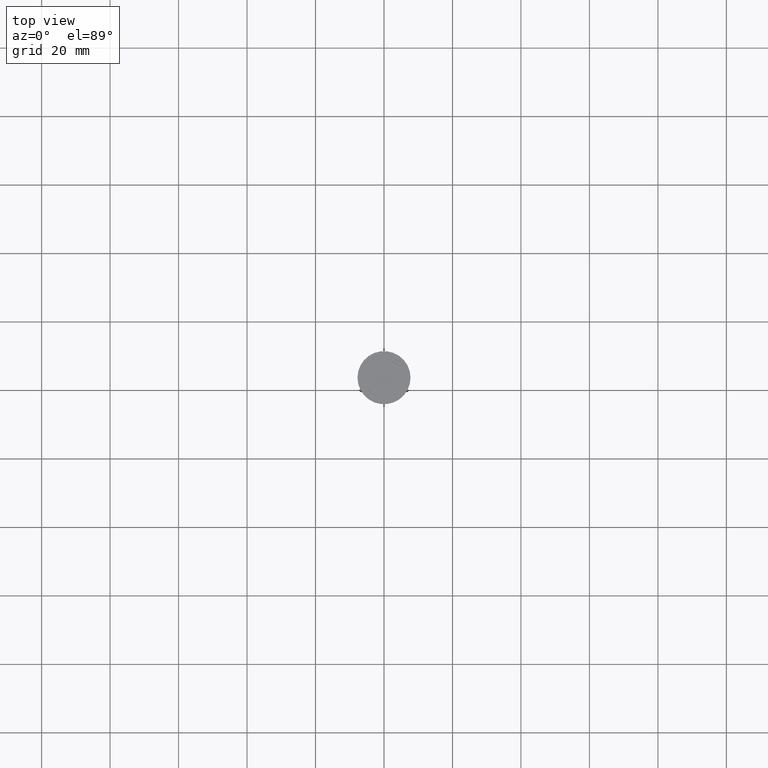
[diagram: clean part render]
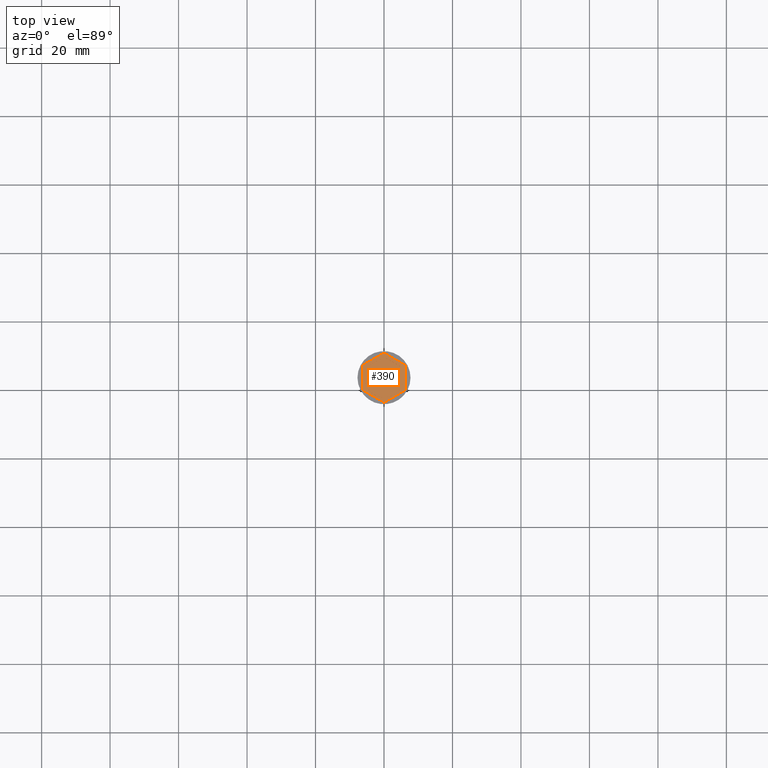
[diagram: same view with one face highlighted and labeled with its STEP entity id]
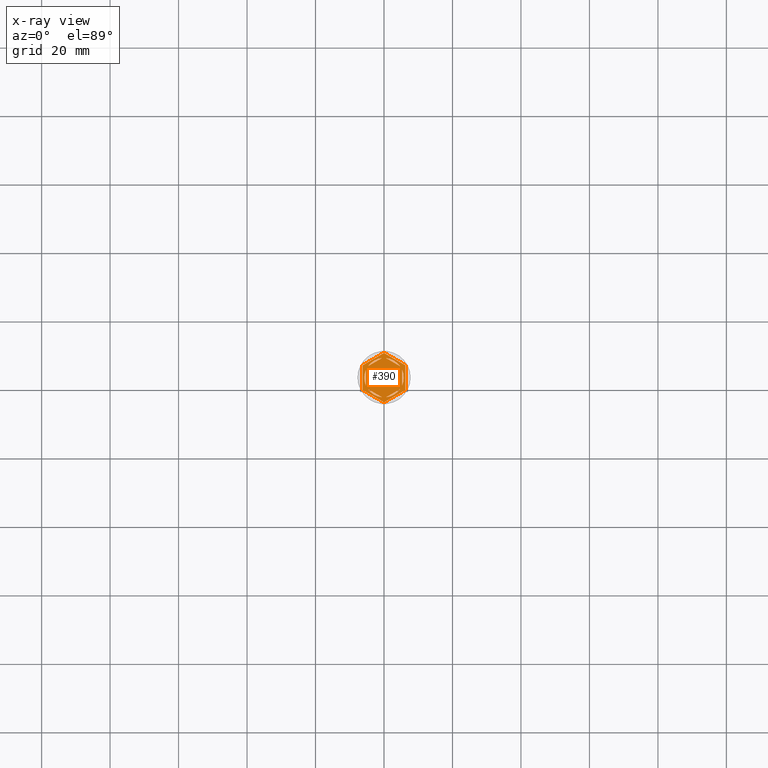
[diagram: x-ray of the same camera — body ghosted, the highlighted face saturated]
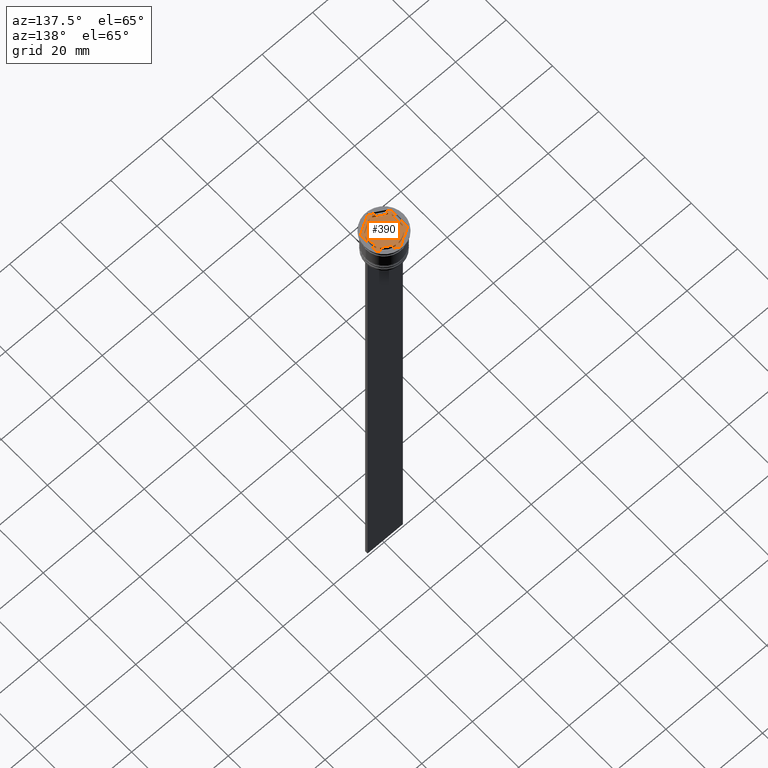
[diagram: same view with one face highlighted and labeled with its STEP entity id]
A machine part, top view. The second image highlights one B-rep face of the part: STEP entity #390.
The next image is the same camera in x-ray: the body ghosted, the highlighted face saturated — about 0% of this face is hidden behind the body in this view.
A second angle (auxiliary view) of the same face is appended — the face is thin or edge-on in the first view.
In plain terms, the highlighted planar face has unit normal (0, 0, 1).
Its self-contained STEP definition (entity closure, byte-faithful):
#1 = EDGE_CURVE ( 'NONE', #131, #1191, #1571, .T. ) ;
#15 = VERTEX_POINT ( 'NONE', #1368 ) ;
#32 = FACE_OUTER_BOUND ( 'NONE', #1095, .T. ) ;
#42 = FACE_BOUND ( 'NONE', #1668, .T. ) ;
#59 = LINE ( 'NONE', #1334, #1460 ) ;
#62 = DIRECTION ( 'NONE',  ( 0.000000000000000000, -1.000000000000000000, 0.000000000000000000 ) ) ;
#67 = DIRECTION ( 'NONE',  ( -0.8660254037844388186, 0.4999999999999997224, 0.000000000000000000 ) ) ;
#91 = CARTESIAN_POINT ( 'NONE',  ( 0.000000000000000000, 0.000000000000000000, -1.000000000000000000 ) ) ;
#94 = CARTESIAN_POINT ( 'NONE',  ( 0.000000000000000000, 7.216878364870320084, -1.000000000000000000 ) ) ;
#131 = VERTEX_POINT ( 'NONE', #1548 ) ;
#137 = EDGE_LOOP ( 'NONE', ( #1281, #879, #354 ) ) ;
#152 = DIRECTION ( 'NONE',  ( 2.403703357979454647E-16, 1.000000000000000000, 0.000000000000000000 ) ) ;
#153 = CARTESIAN_POINT ( 'NONE',  ( -1.734723475976807094E-15, -6.062177826491069510, -1.000000000000000888 ) ) ;
#201 = EDGE_LOOP ( 'NONE', ( #1879, #382 ) ) ;
#209 = VERTEX_POINT ( 'NONE', #1901 ) ;
#237 = CARTESIAN_POINT ( 'NONE',  ( 5.249999999999997335, -2.345207879911720639, -1.000000000000000888 ) ) ;
#238 = EDGE_CURVE ( 'NONE', #1006, #1802, #1163, .T. ) ;
#260 = CARTESIAN_POINT ( 'NONE',  ( -5.249999999999999112, -3.031088913245534311, -1.000000000000000888 ) ) ;
#267 = CARTESIAN_POINT ( 'NONE',  ( 0.000000000000000000, 0.000000000000000000, -1.000000000000000000 ) ) ;
#278 = DIRECTION ( 'NONE',  ( 0.8660254037844385966, -0.4999999999999998890, 0.000000000000000000 ) ) ;
#280 = VECTOR ( 'NONE', #67, 1000.000000000000000 ) ;
#293 = ORIENTED_EDGE ( 'NONE', *, *, #813, .T. ) ;
#297 = VERTEX_POINT ( 'NONE', #1419 ) ;
#299 = CARTESIAN_POINT ( 'NONE',  ( -5.249999999999999112, 3.031088913245535199, -1.000000000000000888 ) ) ;
#305 = VERTEX_POINT ( 'NONE', #1366 ) ;
#315 = CIRCLE ( 'NONE', #562, 5.750000000000000000 ) ;
#320 = EDGE_LOOP ( 'NONE', ( #1210, #1987 ) ) ;
#323 = AXIS2_PLACEMENT_3D ( 'NONE', #1432, #1236, #1207 ) ;
#331 = ORIENTED_EDGE ( 'NONE', *, *, #700, .F. ) ;
#350 = DIRECTION ( 'NONE',  ( 1.000000000000000000, 0.000000000000000000, 0.000000000000000000 ) ) ;
#354 = ORIENTED_EDGE ( 'NONE', *, *, #1492, .F. ) ;
#366 = PLANE ( 'NONE',  #1337 ) ;
#382 = ORIENTED_EDGE ( 'NONE', *, *, #1899, .F. ) ;
#390 = ADVANCED_FACE ( 'NONE', ( #1467, #538, #926, #42, #396, #1815, #32 ), #366, .T. ) ;
#393 = DIRECTION ( 'NONE',  ( 1.000000000000000000, 0.000000000000000000, 0.000000000000000000 ) ) ;
#396 = FACE_BOUND ( 'NONE', #137, .T. ) ;
#490 = EDGE_CURVE ( 'NONE', #2090, #2258, #315, .T. ) ;
#513 = CARTESIAN_POINT ( 'NONE',  ( 8.729740977282959667E-16, -7.216878364870321860, -1.000000000000000000 ) ) ;
#516 = DIRECTION ( 'NONE',  ( 1.000000000000000000, 0.000000000000000000, 0.000000000000000000 ) ) ;
#538 = FACE_BOUND ( 'NONE', #201, .T. ) ;
#540 = CIRCLE ( 'NONE', #1896, 5.750000000000000000 ) ;
#562 = AXIS2_PLACEMENT_3D ( 'NONE', #1859, #1993, #350 ) ;
#567 = AXIS2_PLACEMENT_3D ( 'NONE', #830, #1800, #516 ) ;
#570 = VECTOR ( 'NONE', #2096, 1000.000000000000000 ) ;
#618 = LINE ( 'NONE', #1358, #570 ) ;
#622 = EDGE_CURVE ( 'NONE', #912, #2257, #641, .T. ) ;
#641 = CIRCLE ( 'NONE', #2152, 5.750000000000000000 ) ;
#659 = VERTEX_POINT ( 'NONE', #2105 ) ;
#700 = EDGE_CURVE ( 'NONE', #2258, #2090, #1247, .T. ) ;
#732 = CARTESIAN_POINT ( 'NONE',  ( 0.000000000000000000, 0.000000000000000000, -1.000000000000000000 ) ) ;
#744 = CARTESIAN_POINT ( 'NONE',  ( -5.249999999999999112, -2.345207879911715310, -1.000000000000000888 ) ) ;
#776 = EDGE_CURVE ( 'NONE', #1729, #912, #1946, .T. ) ;
#791 = VECTOR ( 'NONE', #152, 1000.000000000000000 ) ;
#805 = DIRECTION ( 'NONE',  ( -0.8660254037844385966, -0.5000000000000001110, 0.000000000000000000 ) ) ;
#808 = ORIENTED_EDGE ( 'NONE', *, *, #995, .T. ) ;
#813 = EDGE_CURVE ( 'NONE', #2214, #131, #1605, .T. ) ;
#818 = DIRECTION ( 'NONE',  ( 1.000000000000000000, 0.000000000000000000, 0.000000000000000000 ) ) ;
#830 = CARTESIAN_POINT ( 'NONE',  ( 0.000000000000000000, 0.000000000000000000, -1.000000000000000000 ) ) ;
#842 = VECTOR ( 'NONE', #1011, 1000.000000000000000 ) ;
#847 = VECTOR ( 'NONE', #62, 1000.000000000000000 ) ;
#865 = DIRECTION ( 'NONE',  ( -0.8660254037844387076, -0.4999999999999997224, 0.000000000000000000 ) ) ;
#879 = ORIENTED_EDGE ( 'NONE', *, *, #776, .F. ) ;
#912 = VERTEX_POINT ( 'NONE', #1099 ) ;
#926 = FACE_BOUND ( 'NONE', #2004, .T. ) ;
#937 = DIRECTION ( 'NONE',  ( -0.8660254037844384856, 0.5000000000000002220, 0.000000000000000000 ) ) ;
#941 = DIRECTION ( 'NONE',  ( 0.000000000000000000, 0.000000000000000000, 1.000000000000000000 ) ) ;
#957 = CARTESIAN_POINT ( 'NONE',  ( 0.5939903988410074609, -5.719237309824160675, -1.000000000000000888 ) ) ;
#974 = CARTESIAN_POINT ( 'NONE',  ( -4.656009601158989319, 3.374029429912446698, -1.000000000000000888 ) ) ;
#977 = DIRECTION ( 'NONE',  ( 0.000000000000000000, 0.000000000000000000, 1.000000000000000000 ) ) ;
#989 = DIRECTION ( 'NONE',  ( 0.8660254037844387076, -0.4999999999999998335, 0.000000000000000000 ) ) ;
#995 = EDGE_CURVE ( 'NONE', #1191, #1006, #1665, .T. ) ;
#1005 = LINE ( 'NONE', #2238, #2078 ) ;
#1006 = VERTEX_POINT ( 'NONE', #1124 ) ;
#1011 = DIRECTION ( 'NONE',  ( 0.000000000000000000, 1.000000000000000000, 0.000000000000000000 ) ) ;
#1024 = ORIENTED_EDGE ( 'NONE', *, *, #1813, .F. ) ;
#1057 = EDGE_CURVE ( 'NONE', #305, #15, #1903, .T. ) ;
#1086 = CARTESIAN_POINT ( 'NONE',  ( 0.000000000000000000, 0.000000000000000000, -1.000000000000000000 ) ) ;
#1091 = DIRECTION ( 'NONE',  ( 0.000000000000000000, 0.000000000000000000, 1.000000000000000000 ) ) ;
#1095 = EDGE_LOOP ( 'NONE', ( #808, #2085, #1434, #1213, #293, #1821 ) ) ;
#1099 = CARTESIAN_POINT ( 'NONE',  ( -5.249999999999999112, 2.345207879911715310, -1.000000000000000888 ) ) ;
#1118 = CARTESIAN_POINT ( 'NONE',  ( 0.000000000000000000, 0.000000000000000000, -1.000000000000000000 ) ) ;
#1124 = CARTESIAN_POINT ( 'NONE',  ( 0.000000000000000000, 7.216878364870320084, -1.000000000000000000 ) ) ;
#1144 = AXIS2_PLACEMENT_3D ( 'NONE', #1118, #977, #1700 ) ;
#1154 = CARTESIAN_POINT ( 'NONE',  ( 6.250000000000000000, 3.608439182435161374, -1.000000000000000000 ) ) ;
#1163 = LINE ( 'NONE', #94, #1306 ) ;
#1183 = ORIENTED_EDGE ( 'NONE', *, *, #1919, .F. ) ;
#1187 = VECTOR ( 'NONE', #989, 1000.000000000000114 ) ;
#1191 = VERTEX_POINT ( 'NONE', #1372 ) ;
#1207 = DIRECTION ( 'NONE',  ( 1.000000000000000000, 0.000000000000000000, 0.000000000000000000 ) ) ;
#1210 = ORIENTED_EDGE ( 'NONE', *, *, #1444, .F. ) ;
#1213 = ORIENTED_EDGE ( 'NONE', *, *, #1387, .T. ) ;
#1236 = DIRECTION ( 'NONE',  ( 0.000000000000000000, 0.000000000000000000, 1.000000000000000000 ) ) ;
#1247 = LINE ( 'NONE', #1968, #1187 ) ;
#1278 = VECTOR ( 'NONE', #1795, 1000.000000000000000 ) ;
#1279 = ORIENTED_EDGE ( 'NONE', *, *, #2111, .F. ) ;
#1281 = ORIENTED_EDGE ( 'NONE', *, *, #622, .F. ) ;
#1304 = CARTESIAN_POINT ( 'NONE',  ( 4.656009601158988431, 3.374029429912448919, -1.000000000000000888 ) ) ;
#1306 = VECTOR ( 'NONE', #805, 1000.000000000000114 ) ;
#1313 = CARTESIAN_POINT ( 'NONE',  ( 0.5939903988410126789, 5.719237309824160675, -1.000000000000000888 ) ) ;
#1334 = CARTESIAN_POINT ( 'NONE',  ( 8.673617379884035472E-16, 6.062177826491070398, -1.000000000000000888 ) ) ;
#1336 = DIRECTION ( 'NONE',  ( 0.000000000000000000, 0.000000000000000000, 1.000000000000000000 ) ) ;
#1337 = AXIS2_PLACEMENT_3D ( 'NONE', #1086, #1438, #2178 ) ;
#1344 = CIRCLE ( 'NONE', #323, 5.750000000000000000 ) ;
#1358 = CARTESIAN_POINT ( 'NONE',  ( 5.249999999999996447, -3.031088913245536975, -1.000000000000000888 ) ) ;
#1366 = CARTESIAN_POINT ( 'NONE',  ( -0.5939903988410105695, -5.719237309824160675, -1.000000000000000888 ) ) ;
#1368 = CARTESIAN_POINT ( 'NONE',  ( -4.656009601158991096, -3.374029429912444034, -1.000000000000000888 ) ) ;
#1372 = CARTESIAN_POINT ( 'NONE',  ( 6.250000000000000000, 3.608439182435161374, -1.000000000000000000 ) ) ;
#1387 = EDGE_CURVE ( 'NONE', #297, #2214, #1005, .T. ) ;
#1406 = EDGE_CURVE ( 'NONE', #1802, #297, #2289, .T. ) ;
#1415 = CARTESIAN_POINT ( 'NONE',  ( 6.249999999999998224, -3.608439182435161374, -1.000000000000000000 ) ) ;
#1419 = CARTESIAN_POINT ( 'NONE',  ( -6.249999999999999112, -3.608439182435161374, -1.000000000000000000 ) ) ;
#1432 = CARTESIAN_POINT ( 'NONE',  ( 0.000000000000000000, 0.000000000000000000, -1.000000000000000000 ) ) ;
#1434 = ORIENTED_EDGE ( 'NONE', *, *, #1406, .T. ) ;
#1436 = CARTESIAN_POINT ( 'NONE',  ( 5.249999999999997335, 2.345207879911718862, -1.000000000000000888 ) ) ;
#1438 = DIRECTION ( 'NONE',  ( 0.000000000000000000, 0.000000000000000000, 1.000000000000000000 ) ) ;
#1444 = EDGE_CURVE ( 'NONE', #209, #2204, #1690, .T. ) ;
#1455 = VECTOR ( 'NONE', #937, 1000.000000000000114 ) ;
#1460 = VECTOR ( 'NONE', #1539, 1000.000000000000000 ) ;
#1467 = FACE_BOUND ( 'NONE', #1938, .T. ) ;
#1492 = EDGE_CURVE ( 'NONE', #2257, #1729, #1344, .T. ) ;
#1519 = EDGE_CURVE ( 'NONE', #1871, #2167, #1611, .T. ) ;
#1522 = CARTESIAN_POINT ( 'NONE',  ( -6.249999999999999112, 3.608439182435158710, -1.000000000000000000 ) ) ;
#1539 = DIRECTION ( 'NONE',  ( 0.8660254037844387076, 0.4999999999999999445, -0.000000000000000000 ) ) ;
#1548 = CARTESIAN_POINT ( 'NONE',  ( 6.249999999999998224, -3.608439182435161374, -1.000000000000000000 ) ) ;
#1571 = LINE ( 'NONE', #1415, #791 ) ;
#1585 = LINE ( 'NONE', #153, #1972 ) ;
#1605 = LINE ( 'NONE', #513, #1278 ) ;
#1611 = CIRCLE ( 'NONE', #567, 5.750000000000000000 ) ;
#1626 = ORIENTED_EDGE ( 'NONE', *, *, #1057, .F. ) ;
#1650 = AXIS2_PLACEMENT_3D ( 'NONE', #267, #1336, #818 ) ;
#1665 = LINE ( 'NONE', #1154, #280 ) ;
#1668 = EDGE_LOOP ( 'NONE', ( #1279, #1626 ) ) ;
#1678 = DIRECTION ( 'NONE',  ( 1.000000000000000000, 0.000000000000000000, 0.000000000000000000 ) ) ;
#1690 = CIRCLE ( 'NONE', #1650, 5.750000000000000000 ) ;
#1700 = DIRECTION ( 'NONE',  ( 1.000000000000000000, 0.000000000000000000, 0.000000000000000000 ) ) ;
#1717 = CARTESIAN_POINT ( 'NONE',  ( -5.750000000000000000, 0.000000000000000000, -1.000000000000000000 ) ) ;
#1729 = VERTEX_POINT ( 'NONE', #744 ) ;
#1742 = CARTESIAN_POINT ( 'NONE',  ( -6.249999999999999112, 3.608439182435158710, -1.000000000000000000 ) ) ;
#1795 = DIRECTION ( 'NONE',  ( 0.8660254037844385966, 0.5000000000000001110, 0.000000000000000000 ) ) ;
#1800 = DIRECTION ( 'NONE',  ( 0.000000000000000000, 0.000000000000000000, 1.000000000000000000 ) ) ;
#1802 = VERTEX_POINT ( 'NONE', #1522 ) ;
#1813 = EDGE_CURVE ( 'NONE', #1875, #659, #2120, .T. ) ;
#1815 = FACE_BOUND ( 'NONE', #320, .T. ) ;
#1821 = ORIENTED_EDGE ( 'NONE', *, *, #1, .T. ) ;
#1835 = EDGE_CURVE ( 'NONE', #2204, #209, #59, .T. ) ;
#1859 = CARTESIAN_POINT ( 'NONE',  ( 0.000000000000000000, 0.000000000000000000, -1.000000000000000000 ) ) ;
#1871 = VERTEX_POINT ( 'NONE', #237 ) ;
#1875 = VERTEX_POINT ( 'NONE', #957 ) ;
#1879 = ORIENTED_EDGE ( 'NONE', *, *, #1519, .F. ) ;
#1896 = AXIS2_PLACEMENT_3D ( 'NONE', #732, #1091, #393 ) ;
#1899 = EDGE_CURVE ( 'NONE', #2167, #1871, #618, .T. ) ;
#1901 = CARTESIAN_POINT ( 'NONE',  ( -0.5939903988410105695, 5.719237309824159787, -1.000000000000000888 ) ) ;
#1903 = LINE ( 'NONE', #260, #1455 ) ;
#1919 = EDGE_CURVE ( 'NONE', #659, #1875, #1585, .T. ) ;
#1938 = EDGE_LOOP ( 'NONE', ( #2082, #331 ) ) ;
#1946 = LINE ( 'NONE', #299, #842 ) ;
#1968 = CARTESIAN_POINT ( 'NONE',  ( 5.249999999999997335, 3.031088913245537864, -1.000000000000000888 ) ) ;
#1972 = VECTOR ( 'NONE', #865, 1000.000000000000114 ) ;
#1987 = ORIENTED_EDGE ( 'NONE', *, *, #1835, .F. ) ;
#1993 = DIRECTION ( 'NONE',  ( 0.000000000000000000, 0.000000000000000000, 1.000000000000000000 ) ) ;
#2004 = EDGE_LOOP ( 'NONE', ( #1024, #1183 ) ) ;
#2048 = CARTESIAN_POINT ( 'NONE',  ( 8.729740977282959667E-16, -7.216878364870321860, -1.000000000000000000 ) ) ;
#2078 = VECTOR ( 'NONE', #278, 1000.000000000000227 ) ;
#2082 = ORIENTED_EDGE ( 'NONE', *, *, #490, .F. ) ;
#2085 = ORIENTED_EDGE ( 'NONE', *, *, #238, .T. ) ;
#2090 = VERTEX_POINT ( 'NONE', #1304 ) ;
#2096 = DIRECTION ( 'NONE',  ( -1.430775808321103440E-16, -1.000000000000000000, 0.000000000000000000 ) ) ;
#2105 = CARTESIAN_POINT ( 'NONE',  ( 4.656009601158990208, -3.374029429912445810, -1.000000000000000888 ) ) ;
#2111 = EDGE_CURVE ( 'NONE', #15, #305, #540, .T. ) ;
#2120 = CIRCLE ( 'NONE', #1144, 5.750000000000000000 ) ;
#2152 = AXIS2_PLACEMENT_3D ( 'NONE', #91, #941, #1678 ) ;
#2167 = VERTEX_POINT ( 'NONE', #1436 ) ;
#2178 = DIRECTION ( 'NONE',  ( 1.000000000000000000, 0.000000000000000000, -0.000000000000000000 ) ) ;
#2204 = VERTEX_POINT ( 'NONE', #974 ) ;
#2214 = VERTEX_POINT ( 'NONE', #2048 ) ;
#2238 = CARTESIAN_POINT ( 'NONE',  ( -6.249999999999999112, -3.608439182435161374, -1.000000000000000000 ) ) ;
#2257 = VERTEX_POINT ( 'NONE', #1717 ) ;
#2258 = VERTEX_POINT ( 'NONE', #1313 ) ;
#2289 = LINE ( 'NONE', #1742, #847 ) ;